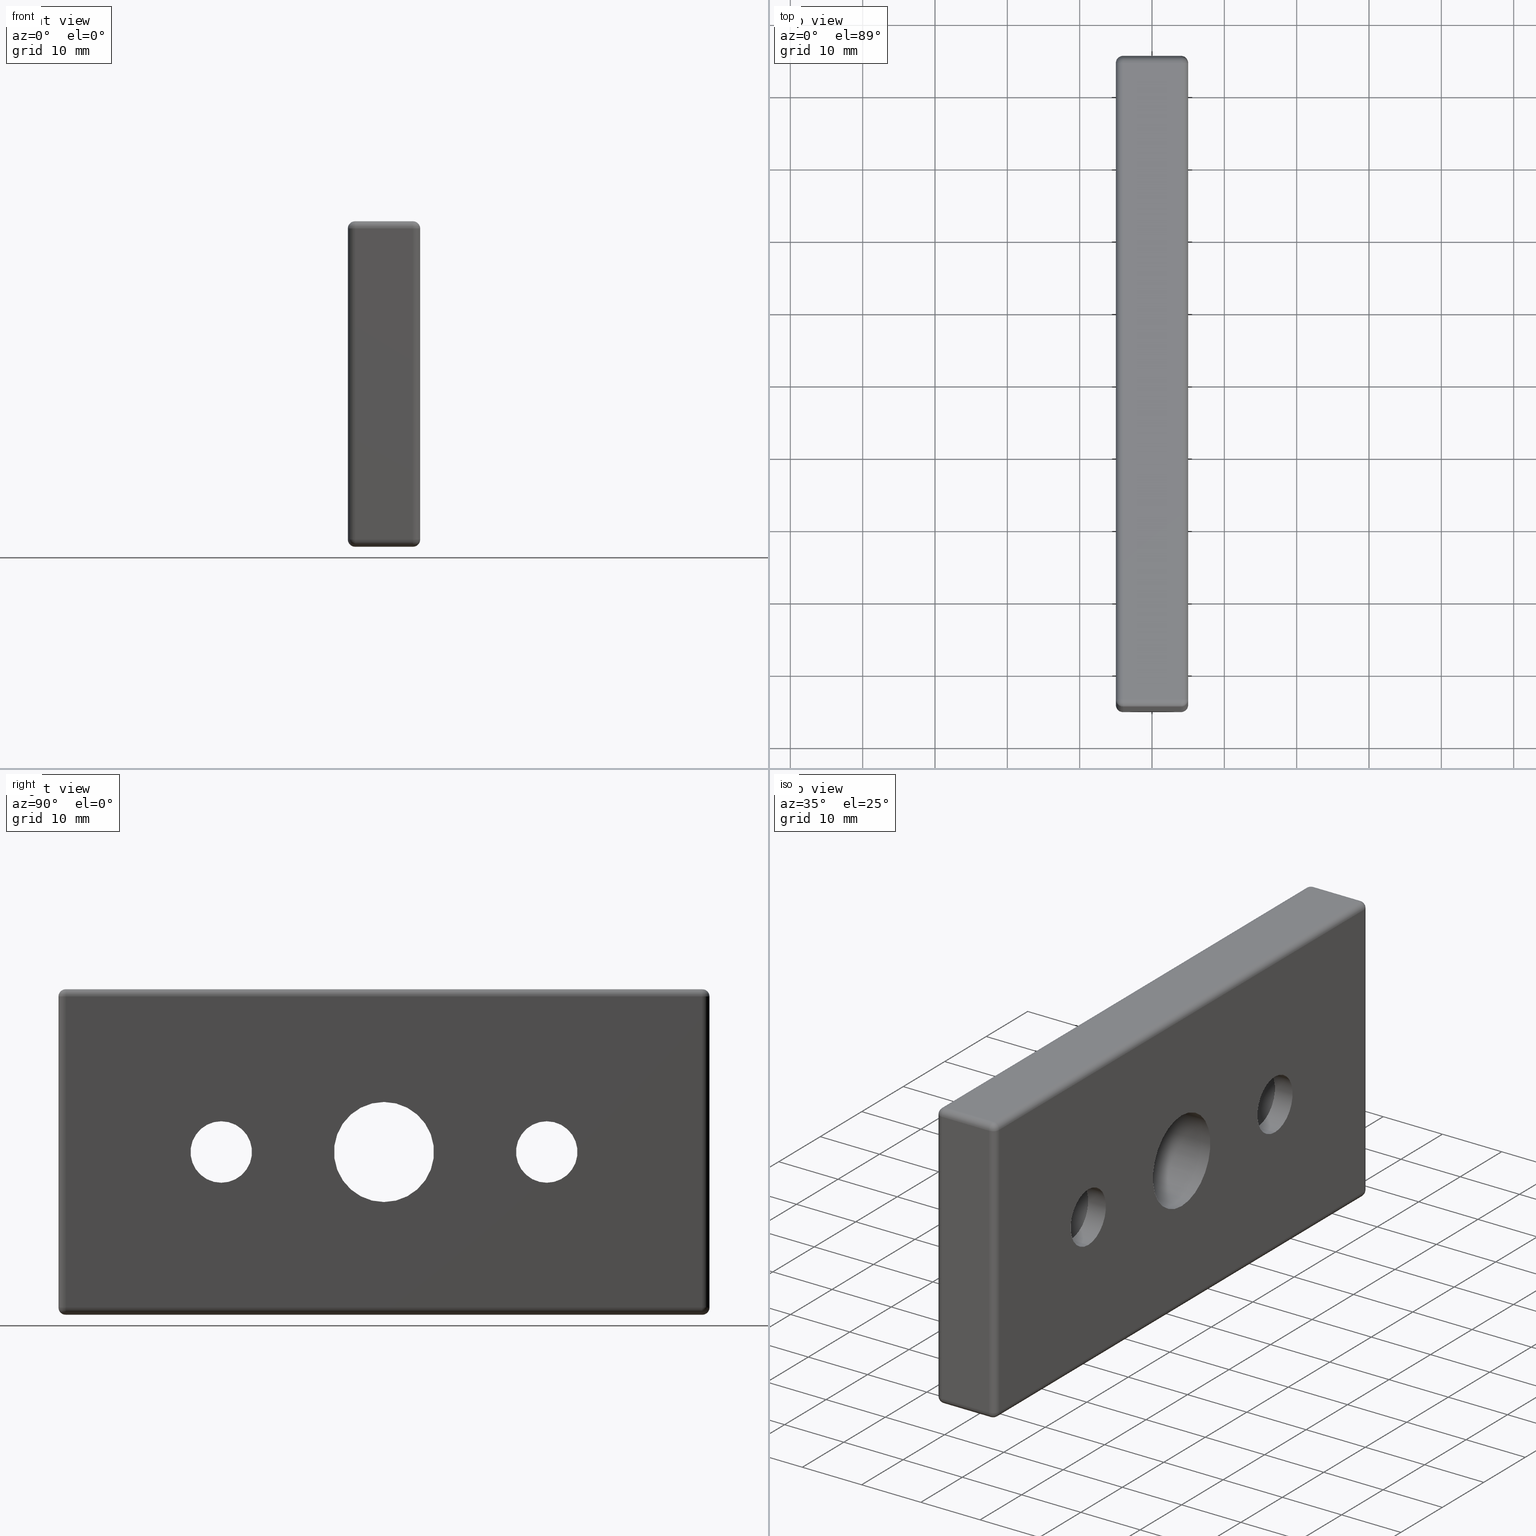
[diagram: canonical four-view strip — front | top / right | iso, engineering-drawing reading convention]
A machine part, canonical four-view strip (front | top / right | iso — engineering-drawing reading convention). The complete STEP part file that produces these views, byte-faithful:
ISO-10303-21;
HEADER;
/* Generated by software containing ST-Developer
 * from STEP Tools, Inc. (www.steptools.com) 
 */

FILE_DESCRIPTION(
/* description */ ('PIASTRA FISS. PIEDI M16 45X90'),
/* implementation_level */ '2;1');

FILE_NAME(
/* name */ 
'Q:\\Catalogo\\2_Accessori Dierre\\Per Download Web e catalogo cartace
o\\CATALOGO PIEDI E SOSTEGNI\\PAGINA 45\\DPSXX0001726.stp',
/* time_stamp */ '2018-11-09T11:31:42+01:00',
/* author */ ('fzagni'),
/* organization */ (''),
/* preprocessor_version */ 'ST-DEVELOPER v16.1',
/* originating_system */ 'Autodesk Inventor 2016',
/* authorisation */ '');

FILE_SCHEMA (('AUTOMOTIVE_DESIGN { 1 0 10303 214 3 1 1 }'));
ENDSEC;

DATA;
#10=MECHANICAL_DESIGN_GEOMETRIC_PRESENTATION_REPRESENTATION('',(#13),#821);
#11=SHAPE_REPRESENTATION_RELATIONSHIP('SRR','None',#830,#12);
#12=ADVANCED_BREP_SHAPE_REPRESENTATION('',(#14),#820);
#13=STYLED_ITEM('',(#839),#14);
#14=MANIFOLD_SOLID_BREP('Solido1',#463);
#15=FACE_BOUND('',#157,.T.);
#16=FACE_BOUND('',#158,.T.);
#17=FACE_BOUND('',#159,.T.);
#18=FACE_BOUND('',#163,.T.);
#19=FACE_BOUND('',#164,.T.);
#20=FACE_BOUND('',#165,.T.);
#21=FACE_BOUND('',#167,.T.);
#22=FACE_BOUND('',#169,.T.);
#23=FACE_BOUND('',#171,.T.);
#24=FACE_BOUND('',#173,.T.);
#25=FACE_BOUND('',#175,.T.);
#26=FACE_BOUND('',#177,.T.);
#27=FACE_BOUND('',#179,.T.);
#28=PLANE('',#509);
#29=PLANE('',#510);
#30=PLANE('',#511);
#31=PLANE('',#515);
#32=PLANE('',#516);
#33=PLANE('',#517);
#34=PLANE('',#521);
#35=PLANE('',#526);
#36=LINE('',#722,#60);
#37=LINE('',#723,#61);
#38=LINE('',#739,#62);
#39=LINE('',#740,#63);
#40=LINE('',#749,#64);
#41=LINE('',#750,#65);
#42=LINE('',#752,#66);
#43=LINE('',#753,#67);
#44=LINE('',#762,#68);
#45=LINE('',#763,#69);
#46=LINE('',#765,#70);
#47=LINE('',#766,#71);
#48=LINE('',#768,#72);
#49=LINE('',#769,#73);
#50=LINE('',#771,#74);
#51=LINE('',#772,#75);
#52=LINE('',#774,#76);
#53=LINE('',#775,#77);
#54=LINE('',#777,#78);
#55=LINE('',#778,#79);
#56=LINE('',#780,#80);
#57=LINE('',#781,#81);
#58=LINE('',#783,#82);
#59=LINE('',#784,#83);
#60=VECTOR('',#568,8.);
#61=VECTOR('',#569,8.);
#62=VECTOR('',#588,8.);
#63=VECTOR('',#589,8.);
#64=VECTOR('',#600,8.);
#65=VECTOR('',#601,8.);
#66=VECTOR('',#604,43.);
#67=VECTOR('',#605,43.);
#68=VECTOR('',#616,8.);
#69=VECTOR('',#617,8.);
#70=VECTOR('',#620,88.);
#71=VECTOR('',#621,88.);
#72=VECTOR('',#624,43.);
#73=VECTOR('',#625,43.);
#74=VECTOR('',#628,88.);
#75=VECTOR('',#629,88.);
#76=VECTOR('',#632,43.);
#77=VECTOR('',#633,43.);
#78=VECTOR('',#636,88.);
#79=VECTOR('',#637,88.);
#80=VECTOR('',#640,43.);
#81=VECTOR('',#641,43.);
#82=VECTOR('',#644,88.);
#83=VECTOR('',#645,88.);
#84=CYLINDRICAL_SURFACE('',#481,1.);
#85=CYLINDRICAL_SURFACE('',#490,1.);
#86=CYLINDRICAL_SURFACE('',#495,1.);
#87=CYLINDRICAL_SURFACE('',#496,1.);
#88=CYLINDRICAL_SURFACE('',#501,1.);
#89=CYLINDRICAL_SURFACE('',#502,1.);
#90=CYLINDRICAL_SURFACE('',#503,1.);
#91=CYLINDRICAL_SURFACE('',#504,1.);
#92=CYLINDRICAL_SURFACE('',#505,1.);
#93=CYLINDRICAL_SURFACE('',#506,1.);
#94=CYLINDRICAL_SURFACE('',#507,1.);
#95=CYLINDRICAL_SURFACE('',#508,1.);
#96=CYLINDRICAL_SURFACE('',#524,9.);
#97=CYLINDRICAL_SURFACE('',#525,4.25);
#98=CYLINDRICAL_SURFACE('',#529,9.);
#99=CYLINDRICAL_SURFACE('',#530,4.25);
#100=CYLINDRICAL_SURFACE('',#531,6.9175);
#101=FACE_OUTER_BOUND('',#134,.T.);
#102=FACE_OUTER_BOUND('',#135,.T.);
#103=FACE_OUTER_BOUND('',#136,.T.);
#104=FACE_OUTER_BOUND('',#137,.T.);
#105=FACE_OUTER_BOUND('',#138,.T.);
#106=FACE_OUTER_BOUND('',#139,.T.);
#107=FACE_OUTER_BOUND('',#140,.T.);
#108=FACE_OUTER_BOUND('',#141,.T.);
#109=FACE_OUTER_BOUND('',#142,.T.);
#110=FACE_OUTER_BOUND('',#143,.T.);
#111=FACE_OUTER_BOUND('',#144,.T.);
#112=FACE_OUTER_BOUND('',#145,.T.);
#113=FACE_OUTER_BOUND('',#146,.T.);
#114=FACE_OUTER_BOUND('',#147,.T.);
#115=FACE_OUTER_BOUND('',#148,.T.);
#116=FACE_OUTER_BOUND('',#149,.T.);
#117=FACE_OUTER_BOUND('',#150,.T.);
#118=FACE_OUTER_BOUND('',#151,.T.);
#119=FACE_OUTER_BOUND('',#152,.T.);
#120=FACE_OUTER_BOUND('',#153,.T.);
#121=FACE_OUTER_BOUND('',#154,.T.);
#122=FACE_OUTER_BOUND('',#155,.T.);
#123=FACE_OUTER_BOUND('',#156,.T.);
#124=FACE_OUTER_BOUND('',#160,.T.);
#125=FACE_OUTER_BOUND('',#161,.T.);
#126=FACE_OUTER_BOUND('',#162,.T.);
#127=FACE_OUTER_BOUND('',#166,.T.);
#128=FACE_OUTER_BOUND('',#168,.T.);
#129=FACE_OUTER_BOUND('',#170,.T.);
#130=FACE_OUTER_BOUND('',#172,.T.);
#131=FACE_OUTER_BOUND('',#174,.T.);
#132=FACE_OUTER_BOUND('',#176,.T.);
#133=FACE_OUTER_BOUND('',#178,.T.);
#134=EDGE_LOOP('',(#306,#307,#308));
#135=EDGE_LOOP('',(#309,#310,#311));
#136=EDGE_LOOP('',(#312,#313,#314));
#137=EDGE_LOOP('',(#315,#316,#317));
#138=EDGE_LOOP('',(#318,#319,#320,#321));
#139=EDGE_LOOP('',(#322,#323,#324));
#140=EDGE_LOOP('',(#325,#326,#327));
#141=EDGE_LOOP('',(#328,#329,#330,#331));
#142=EDGE_LOOP('',(#332,#333,#334));
#143=EDGE_LOOP('',(#335,#336,#337,#338));
#144=EDGE_LOOP('',(#339,#340,#341,#342));
#145=EDGE_LOOP('',(#343,#344,#345));
#146=EDGE_LOOP('',(#346,#347,#348,#349));
#147=EDGE_LOOP('',(#350,#351,#352,#353));
#148=EDGE_LOOP('',(#354,#355,#356,#357));
#149=EDGE_LOOP('',(#358,#359,#360,#361));
#150=EDGE_LOOP('',(#362,#363,#364,#365));
#151=EDGE_LOOP('',(#366,#367,#368,#369));
#152=EDGE_LOOP('',(#370,#371,#372,#373));
#153=EDGE_LOOP('',(#374,#375,#376,#377));
#154=EDGE_LOOP('',(#378,#379,#380,#381));
#155=EDGE_LOOP('',(#382,#383,#384,#385));
#156=EDGE_LOOP('',(#386,#387,#388,#389));
#157=EDGE_LOOP('',(#390));
#158=EDGE_LOOP('',(#391));
#159=EDGE_LOOP('',(#392));
#160=EDGE_LOOP('',(#393,#394,#395,#396));
#161=EDGE_LOOP('',(#397,#398,#399,#400));
#162=EDGE_LOOP('',(#401,#402,#403,#404));
#163=EDGE_LOOP('',(#405));
#164=EDGE_LOOP('',(#406));
#165=EDGE_LOOP('',(#407));
#166=EDGE_LOOP('',(#408));
#167=EDGE_LOOP('',(#409));
#168=EDGE_LOOP('',(#410));
#169=EDGE_LOOP('',(#411));
#170=EDGE_LOOP('',(#412));
#171=EDGE_LOOP('',(#413));
#172=EDGE_LOOP('',(#414));
#173=EDGE_LOOP('',(#415));
#174=EDGE_LOOP('',(#416));
#175=EDGE_LOOP('',(#417));
#176=EDGE_LOOP('',(#418));
#177=EDGE_LOOP('',(#419));
#178=EDGE_LOOP('',(#420));
#179=EDGE_LOOP('',(#421));
#180=CIRCLE('',#466,1.);
#181=CIRCLE('',#467,0.999999999999996);
#182=CIRCLE('',#468,1.);
#183=CIRCLE('',#470,0.999999999999996);
#184=CIRCLE('',#471,0.999999999999996);
#185=CIRCLE('',#472,1.);
#186=CIRCLE('',#474,0.999999999999996);
#187=CIRCLE('',#475,0.999999999999996);
#188=CIRCLE('',#476,1.);
#189=CIRCLE('',#478,0.999999999999996);
#190=CIRCLE('',#479,0.999999999999996);
#191=CIRCLE('',#480,1.);
#192=CIRCLE('',#483,1.);
#193=CIRCLE('',#484,0.999999999999996);
#194=CIRCLE('',#485,1.);
#195=CIRCLE('',#487,1.);
#196=CIRCLE('',#488,0.999999999999996);
#197=CIRCLE('',#489,1.);
#198=CIRCLE('',#492,1.);
#199=CIRCLE('',#493,0.999999999999996);
#200=CIRCLE('',#494,1.);
#201=CIRCLE('',#498,0.999999999999996);
#202=CIRCLE('',#499,0.999999999999996);
#203=CIRCLE('',#500,1.);
#204=CIRCLE('',#512,6.9175);
#205=CIRCLE('',#513,9.);
#206=CIRCLE('',#514,9.);
#207=CIRCLE('',#518,6.9175);
#208=CIRCLE('',#519,4.25);
#209=CIRCLE('',#520,4.25);
#210=CIRCLE('',#522,9.);
#211=CIRCLE('',#523,4.25);
#212=CIRCLE('',#527,9.);
#213=CIRCLE('',#528,4.25);
#214=VERTEX_POINT('',#694);
#215=VERTEX_POINT('',#695);
#216=VERTEX_POINT('',#697);
#217=VERTEX_POINT('',#701);
#218=VERTEX_POINT('',#702);
#219=VERTEX_POINT('',#704);
#220=VERTEX_POINT('',#708);
#221=VERTEX_POINT('',#709);
#222=VERTEX_POINT('',#711);
#223=VERTEX_POINT('',#715);
#224=VERTEX_POINT('',#716);
#225=VERTEX_POINT('',#718);
#226=VERTEX_POINT('',#725);
#227=VERTEX_POINT('',#726);
#228=VERTEX_POINT('',#728);
#229=VERTEX_POINT('',#732);
#230=VERTEX_POINT('',#733);
#231=VERTEX_POINT('',#735);
#232=VERTEX_POINT('',#742);
#233=VERTEX_POINT('',#743);
#234=VERTEX_POINT('',#745);
#235=VERTEX_POINT('',#755);
#236=VERTEX_POINT('',#756);
#237=VERTEX_POINT('',#758);
#238=VERTEX_POINT('',#788);
#239=VERTEX_POINT('',#790);
#240=VERTEX_POINT('',#792);
#241=VERTEX_POINT('',#797);
#242=VERTEX_POINT('',#799);
#243=VERTEX_POINT('',#801);
#244=VERTEX_POINT('',#804);
#245=VERTEX_POINT('',#806);
#246=VERTEX_POINT('',#811);
#247=VERTEX_POINT('',#813);
#248=EDGE_CURVE('',#214,#215,#180,.F.);
#249=EDGE_CURVE('',#216,#214,#181,.F.);
#250=EDGE_CURVE('',#215,#216,#182,.F.);
#251=EDGE_CURVE('',#217,#218,#183,.F.);
#252=EDGE_CURVE('',#219,#217,#184,.F.);
#253=EDGE_CURVE('',#218,#219,#185,.F.);
#254=EDGE_CURVE('',#220,#221,#186,.F.);
#255=EDGE_CURVE('',#222,#220,#187,.F.);
#256=EDGE_CURVE('',#221,#222,#188,.F.);
#257=EDGE_CURVE('',#223,#224,#189,.F.);
#258=EDGE_CURVE('',#225,#223,#190,.F.);
#259=EDGE_CURVE('',#224,#225,#191,.F.);
#260=EDGE_CURVE('',#214,#225,#36,.T.);
#261=EDGE_CURVE('',#223,#216,#37,.T.);
#262=EDGE_CURVE('',#226,#227,#192,.F.);
#263=EDGE_CURVE('',#228,#226,#193,.F.);
#264=EDGE_CURVE('',#227,#228,#194,.F.);
#265=EDGE_CURVE('',#229,#230,#195,.F.);
#266=EDGE_CURVE('',#231,#229,#196,.F.);
#267=EDGE_CURVE('',#230,#231,#197,.F.);
#268=EDGE_CURVE('',#229,#219,#38,.T.);
#269=EDGE_CURVE('',#217,#231,#39,.T.);
#270=EDGE_CURVE('',#232,#233,#198,.F.);
#271=EDGE_CURVE('',#234,#232,#199,.F.);
#272=EDGE_CURVE('',#233,#234,#200,.F.);
#273=EDGE_CURVE('',#220,#234,#40,.T.);
#274=EDGE_CURVE('',#232,#222,#41,.T.);
#275=EDGE_CURVE('',#224,#233,#42,.T.);
#276=EDGE_CURVE('',#234,#223,#43,.T.);
#277=EDGE_CURVE('',#235,#236,#201,.F.);
#278=EDGE_CURVE('',#237,#235,#202,.F.);
#279=EDGE_CURVE('',#236,#237,#203,.F.);
#280=EDGE_CURVE('',#226,#237,#44,.T.);
#281=EDGE_CURVE('',#235,#228,#45,.T.);
#282=EDGE_CURVE('',#233,#236,#46,.T.);
#283=EDGE_CURVE('',#237,#232,#47,.T.);
#284=EDGE_CURVE('',#236,#230,#48,.T.);
#285=EDGE_CURVE('',#231,#235,#49,.T.);
#286=EDGE_CURVE('',#230,#224,#50,.T.);
#287=EDGE_CURVE('',#225,#229,#51,.T.);
#288=EDGE_CURVE('',#218,#227,#52,.T.);
#289=EDGE_CURVE('',#228,#217,#53,.T.);
#290=EDGE_CURVE('',#227,#221,#54,.T.);
#291=EDGE_CURVE('',#222,#226,#55,.T.);
#292=EDGE_CURVE('',#221,#215,#56,.T.);
#293=EDGE_CURVE('',#216,#220,#57,.T.);
#294=EDGE_CURVE('',#215,#218,#58,.T.);
#295=EDGE_CURVE('',#219,#214,#59,.T.);
#296=EDGE_CURVE('',#238,#238,#204,.T.);
#297=EDGE_CURVE('',#239,#239,#205,.T.);
#298=EDGE_CURVE('',#240,#240,#206,.T.);
#299=EDGE_CURVE('',#241,#241,#207,.T.);
#300=EDGE_CURVE('',#242,#242,#208,.T.);
#301=EDGE_CURVE('',#243,#243,#209,.T.);
#302=EDGE_CURVE('',#244,#244,#210,.T.);
#303=EDGE_CURVE('',#245,#245,#211,.T.);
#304=EDGE_CURVE('',#246,#246,#212,.T.);
#305=EDGE_CURVE('',#247,#247,#213,.T.);
#306=ORIENTED_EDGE('',*,*,#248,.F.);
#307=ORIENTED_EDGE('',*,*,#249,.F.);
#308=ORIENTED_EDGE('',*,*,#250,.F.);
#309=ORIENTED_EDGE('',*,*,#251,.F.);
#310=ORIENTED_EDGE('',*,*,#252,.F.);
#311=ORIENTED_EDGE('',*,*,#253,.F.);
#312=ORIENTED_EDGE('',*,*,#254,.F.);
#313=ORIENTED_EDGE('',*,*,#255,.F.);
#314=ORIENTED_EDGE('',*,*,#256,.F.);
#315=ORIENTED_EDGE('',*,*,#257,.F.);
#316=ORIENTED_EDGE('',*,*,#258,.F.);
#317=ORIENTED_EDGE('',*,*,#259,.F.);
#318=ORIENTED_EDGE('',*,*,#249,.T.);
#319=ORIENTED_EDGE('',*,*,#260,.T.);
#320=ORIENTED_EDGE('',*,*,#258,.T.);
#321=ORIENTED_EDGE('',*,*,#261,.T.);
#322=ORIENTED_EDGE('',*,*,#262,.F.);
#323=ORIENTED_EDGE('',*,*,#263,.F.);
#324=ORIENTED_EDGE('',*,*,#264,.F.);
#325=ORIENTED_EDGE('',*,*,#265,.F.);
#326=ORIENTED_EDGE('',*,*,#266,.F.);
#327=ORIENTED_EDGE('',*,*,#267,.F.);
#328=ORIENTED_EDGE('',*,*,#266,.T.);
#329=ORIENTED_EDGE('',*,*,#268,.T.);
#330=ORIENTED_EDGE('',*,*,#252,.T.);
#331=ORIENTED_EDGE('',*,*,#269,.T.);
#332=ORIENTED_EDGE('',*,*,#270,.F.);
#333=ORIENTED_EDGE('',*,*,#271,.F.);
#334=ORIENTED_EDGE('',*,*,#272,.F.);
#335=ORIENTED_EDGE('',*,*,#255,.T.);
#336=ORIENTED_EDGE('',*,*,#273,.T.);
#337=ORIENTED_EDGE('',*,*,#271,.T.);
#338=ORIENTED_EDGE('',*,*,#274,.T.);
#339=ORIENTED_EDGE('',*,*,#257,.T.);
#340=ORIENTED_EDGE('',*,*,#275,.T.);
#341=ORIENTED_EDGE('',*,*,#272,.T.);
#342=ORIENTED_EDGE('',*,*,#276,.T.);
#343=ORIENTED_EDGE('',*,*,#277,.F.);
#344=ORIENTED_EDGE('',*,*,#278,.F.);
#345=ORIENTED_EDGE('',*,*,#279,.F.);
#346=ORIENTED_EDGE('',*,*,#263,.T.);
#347=ORIENTED_EDGE('',*,*,#280,.T.);
#348=ORIENTED_EDGE('',*,*,#278,.T.);
#349=ORIENTED_EDGE('',*,*,#281,.T.);
#350=ORIENTED_EDGE('',*,*,#270,.T.);
#351=ORIENTED_EDGE('',*,*,#282,.T.);
#352=ORIENTED_EDGE('',*,*,#279,.T.);
#353=ORIENTED_EDGE('',*,*,#283,.T.);
#354=ORIENTED_EDGE('',*,*,#277,.T.);
#355=ORIENTED_EDGE('',*,*,#284,.T.);
#356=ORIENTED_EDGE('',*,*,#267,.T.);
#357=ORIENTED_EDGE('',*,*,#285,.T.);
#358=ORIENTED_EDGE('',*,*,#265,.T.);
#359=ORIENTED_EDGE('',*,*,#286,.T.);
#360=ORIENTED_EDGE('',*,*,#259,.T.);
#361=ORIENTED_EDGE('',*,*,#287,.T.);
#362=ORIENTED_EDGE('',*,*,#251,.T.);
#363=ORIENTED_EDGE('',*,*,#288,.T.);
#364=ORIENTED_EDGE('',*,*,#264,.T.);
#365=ORIENTED_EDGE('',*,*,#289,.T.);
#366=ORIENTED_EDGE('',*,*,#262,.T.);
#367=ORIENTED_EDGE('',*,*,#290,.T.);
#368=ORIENTED_EDGE('',*,*,#256,.T.);
#369=ORIENTED_EDGE('',*,*,#291,.T.);
#370=ORIENTED_EDGE('',*,*,#254,.T.);
#371=ORIENTED_EDGE('',*,*,#292,.T.);
#372=ORIENTED_EDGE('',*,*,#250,.T.);
#373=ORIENTED_EDGE('',*,*,#293,.T.);
#374=ORIENTED_EDGE('',*,*,#248,.T.);
#375=ORIENTED_EDGE('',*,*,#294,.T.);
#376=ORIENTED_EDGE('',*,*,#253,.T.);
#377=ORIENTED_EDGE('',*,*,#295,.T.);
#378=ORIENTED_EDGE('',*,*,#268,.F.);
#379=ORIENTED_EDGE('',*,*,#287,.F.);
#380=ORIENTED_EDGE('',*,*,#260,.F.);
#381=ORIENTED_EDGE('',*,*,#295,.F.);
#382=ORIENTED_EDGE('',*,*,#273,.F.);
#383=ORIENTED_EDGE('',*,*,#293,.F.);
#384=ORIENTED_EDGE('',*,*,#261,.F.);
#385=ORIENTED_EDGE('',*,*,#276,.F.);
#386=ORIENTED_EDGE('',*,*,#275,.F.);
#387=ORIENTED_EDGE('',*,*,#286,.F.);
#388=ORIENTED_EDGE('',*,*,#284,.F.);
#389=ORIENTED_EDGE('',*,*,#282,.F.);
#390=ORIENTED_EDGE('',*,*,#296,.T.);
#391=ORIENTED_EDGE('',*,*,#297,.T.);
#392=ORIENTED_EDGE('',*,*,#298,.T.);
#393=ORIENTED_EDGE('',*,*,#281,.F.);
#394=ORIENTED_EDGE('',*,*,#285,.F.);
#395=ORIENTED_EDGE('',*,*,#269,.F.);
#396=ORIENTED_EDGE('',*,*,#289,.F.);
#397=ORIENTED_EDGE('',*,*,#280,.F.);
#398=ORIENTED_EDGE('',*,*,#291,.F.);
#399=ORIENTED_EDGE('',*,*,#274,.F.);
#400=ORIENTED_EDGE('',*,*,#283,.F.);
#401=ORIENTED_EDGE('',*,*,#288,.F.);
#402=ORIENTED_EDGE('',*,*,#294,.F.);
#403=ORIENTED_EDGE('',*,*,#292,.F.);
#404=ORIENTED_EDGE('',*,*,#290,.F.);
#405=ORIENTED_EDGE('',*,*,#299,.T.);
#406=ORIENTED_EDGE('',*,*,#300,.T.);
#407=ORIENTED_EDGE('',*,*,#301,.T.);
#408=ORIENTED_EDGE('',*,*,#302,.T.);
#409=ORIENTED_EDGE('',*,*,#303,.F.);
#410=ORIENTED_EDGE('',*,*,#298,.F.);
#411=ORIENTED_EDGE('',*,*,#302,.F.);
#412=ORIENTED_EDGE('',*,*,#301,.F.);
#413=ORIENTED_EDGE('',*,*,#303,.T.);
#414=ORIENTED_EDGE('',*,*,#304,.T.);
#415=ORIENTED_EDGE('',*,*,#305,.F.);
#416=ORIENTED_EDGE('',*,*,#297,.F.);
#417=ORIENTED_EDGE('',*,*,#304,.F.);
#418=ORIENTED_EDGE('',*,*,#300,.F.);
#419=ORIENTED_EDGE('',*,*,#305,.T.);
#420=ORIENTED_EDGE('',*,*,#299,.F.);
#421=ORIENTED_EDGE('',*,*,#296,.F.);
#422=SPHERICAL_SURFACE('',#465,0.999999999999996);
#423=SPHERICAL_SURFACE('',#469,0.999999999999996);
#424=SPHERICAL_SURFACE('',#473,0.999999999999996);
#425=SPHERICAL_SURFACE('',#477,0.999999999999996);
#426=SPHERICAL_SURFACE('',#482,0.999999999999996);
#427=SPHERICAL_SURFACE('',#486,0.999999999999996);
#428=SPHERICAL_SURFACE('',#491,0.999999999999996);
#429=SPHERICAL_SURFACE('',#497,0.999999999999996);
#430=ADVANCED_FACE('',(#101),#422,.T.);
#431=ADVANCED_FACE('',(#102),#423,.T.);
#432=ADVANCED_FACE('',(#103),#424,.T.);
#433=ADVANCED_FACE('',(#104),#425,.T.);
#434=ADVANCED_FACE('',(#105),#84,.T.);
#435=ADVANCED_FACE('',(#106),#426,.T.);
#436=ADVANCED_FACE('',(#107),#427,.T.);
#437=ADVANCED_FACE('',(#108),#85,.T.);
#438=ADVANCED_FACE('',(#109),#428,.T.);
#439=ADVANCED_FACE('',(#110),#86,.T.);
#440=ADVANCED_FACE('',(#111),#87,.T.);
#441=ADVANCED_FACE('',(#112),#429,.T.);
#442=ADVANCED_FACE('',(#113),#88,.T.);
#443=ADVANCED_FACE('',(#114),#89,.T.);
#444=ADVANCED_FACE('',(#115),#90,.T.);
#445=ADVANCED_FACE('',(#116),#91,.T.);
#446=ADVANCED_FACE('',(#117),#92,.T.);
#447=ADVANCED_FACE('',(#118),#93,.T.);
#448=ADVANCED_FACE('',(#119),#94,.T.);
#449=ADVANCED_FACE('',(#120),#95,.T.);
#450=ADVANCED_FACE('',(#121),#28,.T.);
#451=ADVANCED_FACE('',(#122),#29,.T.);
#452=ADVANCED_FACE('',(#123,#15,#16,#17),#30,.T.);
#453=ADVANCED_FACE('',(#124),#31,.T.);
#454=ADVANCED_FACE('',(#125),#32,.T.);
#455=ADVANCED_FACE('',(#126,#18,#19,#20),#33,.T.);
#456=ADVANCED_FACE('',(#127,#21),#34,.T.);
#457=ADVANCED_FACE('',(#128,#22),#96,.F.);
#458=ADVANCED_FACE('',(#129,#23),#97,.F.);
#459=ADVANCED_FACE('',(#130,#24),#35,.T.);
#460=ADVANCED_FACE('',(#131,#25),#98,.F.);
#461=ADVANCED_FACE('',(#132,#26),#99,.F.);
#462=ADVANCED_FACE('',(#133,#27),#100,.F.);
#463=CLOSED_SHELL('',(#430,#431,#432,#433,#434,#435,#436,#437,#438,#439,
#440,#441,#442,#443,#444,#445,#446,#447,#448,#449,#450,#451,#452,#453,#454,
#455,#456,#457,#458,#459,#460,#461,#462));
#464=AXIS2_PLACEMENT_3D('placement',#692,#532,#533);
#465=AXIS2_PLACEMENT_3D('',#693,#534,#535);
#466=AXIS2_PLACEMENT_3D('',#696,#536,#537);
#467=AXIS2_PLACEMENT_3D('',#698,#538,#539);
#468=AXIS2_PLACEMENT_3D('',#699,#540,#541);
#469=AXIS2_PLACEMENT_3D('',#700,#542,#543);
#470=AXIS2_PLACEMENT_3D('',#703,#544,#545);
#471=AXIS2_PLACEMENT_3D('',#705,#546,#547);
#472=AXIS2_PLACEMENT_3D('',#706,#548,#549);
#473=AXIS2_PLACEMENT_3D('',#707,#550,#551);
#474=AXIS2_PLACEMENT_3D('',#710,#552,#553);
#475=AXIS2_PLACEMENT_3D('',#712,#554,#555);
#476=AXIS2_PLACEMENT_3D('',#713,#556,#557);
#477=AXIS2_PLACEMENT_3D('',#714,#558,#559);
#478=AXIS2_PLACEMENT_3D('',#717,#560,#561);
#479=AXIS2_PLACEMENT_3D('',#719,#562,#563);
#480=AXIS2_PLACEMENT_3D('',#720,#564,#565);
#481=AXIS2_PLACEMENT_3D('',#721,#566,#567);
#482=AXIS2_PLACEMENT_3D('',#724,#570,#571);
#483=AXIS2_PLACEMENT_3D('',#727,#572,#573);
#484=AXIS2_PLACEMENT_3D('',#729,#574,#575);
#485=AXIS2_PLACEMENT_3D('',#730,#576,#577);
#486=AXIS2_PLACEMENT_3D('',#731,#578,#579);
#487=AXIS2_PLACEMENT_3D('',#734,#580,#581);
#488=AXIS2_PLACEMENT_3D('',#736,#582,#583);
#489=AXIS2_PLACEMENT_3D('',#737,#584,#585);
#490=AXIS2_PLACEMENT_3D('',#738,#586,#587);
#491=AXIS2_PLACEMENT_3D('',#741,#590,#591);
#492=AXIS2_PLACEMENT_3D('',#744,#592,#593);
#493=AXIS2_PLACEMENT_3D('',#746,#594,#595);
#494=AXIS2_PLACEMENT_3D('',#747,#596,#597);
#495=AXIS2_PLACEMENT_3D('',#748,#598,#599);
#496=AXIS2_PLACEMENT_3D('',#751,#602,#603);
#497=AXIS2_PLACEMENT_3D('',#754,#606,#607);
#498=AXIS2_PLACEMENT_3D('',#757,#608,#609);
#499=AXIS2_PLACEMENT_3D('',#759,#610,#611);
#500=AXIS2_PLACEMENT_3D('',#760,#612,#613);
#501=AXIS2_PLACEMENT_3D('',#761,#614,#615);
#502=AXIS2_PLACEMENT_3D('',#764,#618,#619);
#503=AXIS2_PLACEMENT_3D('',#767,#622,#623);
#504=AXIS2_PLACEMENT_3D('',#770,#626,#627);
#505=AXIS2_PLACEMENT_3D('',#773,#630,#631);
#506=AXIS2_PLACEMENT_3D('',#776,#634,#635);
#507=AXIS2_PLACEMENT_3D('',#779,#638,#639);
#508=AXIS2_PLACEMENT_3D('',#782,#642,#643);
#509=AXIS2_PLACEMENT_3D('',#785,#646,#647);
#510=AXIS2_PLACEMENT_3D('',#786,#648,#649);
#511=AXIS2_PLACEMENT_3D('',#787,#650,#651);
#512=AXIS2_PLACEMENT_3D('',#789,#652,#653);
#513=AXIS2_PLACEMENT_3D('',#791,#654,#655);
#514=AXIS2_PLACEMENT_3D('',#793,#656,#657);
#515=AXIS2_PLACEMENT_3D('',#794,#658,#659);
#516=AXIS2_PLACEMENT_3D('',#795,#660,#661);
#517=AXIS2_PLACEMENT_3D('',#796,#662,#663);
#518=AXIS2_PLACEMENT_3D('',#798,#664,#665);
#519=AXIS2_PLACEMENT_3D('',#800,#666,#667);
#520=AXIS2_PLACEMENT_3D('',#802,#668,#669);
#521=AXIS2_PLACEMENT_3D('',#803,#670,#671);
#522=AXIS2_PLACEMENT_3D('',#805,#672,#673);
#523=AXIS2_PLACEMENT_3D('',#807,#674,#675);
#524=AXIS2_PLACEMENT_3D('',#808,#676,#677);
#525=AXIS2_PLACEMENT_3D('',#809,#678,#679);
#526=AXIS2_PLACEMENT_3D('',#810,#680,#681);
#527=AXIS2_PLACEMENT_3D('',#812,#682,#683);
#528=AXIS2_PLACEMENT_3D('',#814,#684,#685);
#529=AXIS2_PLACEMENT_3D('',#815,#686,#687);
#530=AXIS2_PLACEMENT_3D('',#816,#688,#689);
#531=AXIS2_PLACEMENT_3D('',#817,#690,#691);
#532=DIRECTION('axis',(0.,0.,1.));
#533=DIRECTION('refdir',(1.,0.,0.));
#534=DIRECTION('center_axis',(-0.408248290463861,-0.408248290463861,-0.816496580927728));
#535=DIRECTION('ref_axis',(0.577350269189628,0.577350269189625,-0.577350269189625));
#536=DIRECTION('center_axis',(0.,1.,0.));
#537=DIRECTION('ref_axis',(0.,0.,-1.));
#538=DIRECTION('center_axis',(1.,0.,0.));
#539=DIRECTION('ref_axis',(0.,1.,0.));
#540=DIRECTION('center_axis',(0.,-4.44089209850064E-15,-1.));
#541=DIRECTION('ref_axis',(1.,0.,0.));
#542=DIRECTION('center_axis',(-0.408248290463861,0.408248290463861,-0.816496580927728));
#543=DIRECTION('ref_axis',(0.577350269189628,-0.577350269189625,-0.577350269189625));
#544=DIRECTION('center_axis',(4.44089209850063E-15,0.,-1.));
#545=DIRECTION('ref_axis',(0.,-1.,0.));
#546=DIRECTION('center_axis',(1.,0.,0.));
#547=DIRECTION('ref_axis',(0.,0.,-1.));
#548=DIRECTION('center_axis',(0.,-1.,0.));
#549=DIRECTION('ref_axis',(1.,0.,0.));
#550=DIRECTION('center_axis',(0.408248290463861,0.408248290463861,-0.816496580927728));
#551=DIRECTION('ref_axis',(0.577350269189628,0.577350269189625,0.577350269189625));
#552=DIRECTION('center_axis',(4.44089209850063E-15,0.,1.));
#553=DIRECTION('ref_axis',(0.,1.,0.));
#554=DIRECTION('center_axis',(1.,0.,0.));
#555=DIRECTION('ref_axis',(0.,0.,1.));
#556=DIRECTION('center_axis',(0.,1.,0.));
#557=DIRECTION('ref_axis',(1.,0.,0.));
#558=DIRECTION('center_axis',(0.408248290463861,-0.408248290463861,-0.816496580927728));
#559=DIRECTION('ref_axis',(-0.577350269189628,0.577350269189625,-0.577350269189625));
#560=DIRECTION('center_axis',(-4.44089209850063E-15,0.,-1.));
#561=DIRECTION('ref_axis',(0.,1.,0.));
#562=DIRECTION('center_axis',(-1.,0.,0.));
#563=DIRECTION('ref_axis',(0.,0.,-1.));
#564=DIRECTION('center_axis',(0.,1.,0.));
#565=DIRECTION('ref_axis',(-1.,0.,0.));
#566=DIRECTION('center_axis',(1.,0.,0.));
#567=DIRECTION('ref_axis',(0.,0.707106781186548,-0.707106781186548));
#568=DIRECTION('',(-1.,0.,0.));
#569=DIRECTION('',(1.,0.,0.));
#570=DIRECTION('center_axis',(0.408248290463861,-0.408248290463861,-0.816496580927728));
#571=DIRECTION('ref_axis',(0.577350269189628,-0.577350269189625,0.577350269189625));
#572=DIRECTION('center_axis',(0.,-1.,0.));
#573=DIRECTION('ref_axis',(0.,0.,1.));
#574=DIRECTION('center_axis',(1.,0.,0.));
#575=DIRECTION('ref_axis',(0.,-1.,0.));
#576=DIRECTION('center_axis',(0.,4.44089209850064E-15,1.));
#577=DIRECTION('ref_axis',(1.,0.,0.));
#578=DIRECTION('center_axis',(0.408248290463861,0.408248290463861,-0.816496580927728));
#579=DIRECTION('ref_axis',(-0.577350269189628,-0.577350269189625,-0.577350269189625));
#580=DIRECTION('center_axis',(0.,-1.,0.));
#581=DIRECTION('ref_axis',(0.,0.,-1.));
#582=DIRECTION('center_axis',(-1.,0.,0.));
#583=DIRECTION('ref_axis',(0.,-1.,0.));
#584=DIRECTION('center_axis',(0.,4.44089209850064E-15,-1.));
#585=DIRECTION('ref_axis',(-1.,0.,0.));
#586=DIRECTION('center_axis',(-1.,0.,0.));
#587=DIRECTION('ref_axis',(0.,-0.707106781186548,-0.707106781186548));
#588=DIRECTION('',(1.,0.,0.));
#589=DIRECTION('',(-1.,0.,0.));
#590=DIRECTION('center_axis',(-0.408248290463861,0.408248290463861,-0.816496580927728));
#591=DIRECTION('ref_axis',(-0.577350269189628,0.577350269189625,0.577350269189625));
#592=DIRECTION('center_axis',(0.,1.,0.));
#593=DIRECTION('ref_axis',(0.,0.,1.));
#594=DIRECTION('center_axis',(-1.,0.,0.));
#595=DIRECTION('ref_axis',(0.,1.,0.));
#596=DIRECTION('center_axis',(0.,-4.44089209850064E-15,1.));
#597=DIRECTION('ref_axis',(-1.,0.,0.));
#598=DIRECTION('center_axis',(1.,0.,0.));
#599=DIRECTION('ref_axis',(0.,0.707106781186548,0.707106781186548));
#600=DIRECTION('',(-1.,0.,0.));
#601=DIRECTION('',(1.,0.,0.));
#602=DIRECTION('center_axis',(0.,0.,-1.));
#603=DIRECTION('ref_axis',(-0.707106781186549,0.707106781186546,0.));
#604=DIRECTION('',(0.,0.,1.));
#605=DIRECTION('',(0.,0.,-1.));
#606=DIRECTION('center_axis',(-0.408248290463861,-0.408248290463861,-0.816496580927728));
#607=DIRECTION('ref_axis',(-0.577350269189628,-0.577350269189625,0.577350269189625));
#608=DIRECTION('center_axis',(-4.44089209850063E-15,0.,1.));
#609=DIRECTION('ref_axis',(0.,-1.,0.));
#610=DIRECTION('center_axis',(-1.,0.,0.));
#611=DIRECTION('ref_axis',(0.,0.,1.));
#612=DIRECTION('center_axis',(0.,-1.,0.));
#613=DIRECTION('ref_axis',(-1.,0.,0.));
#614=DIRECTION('center_axis',(1.,0.,0.));
#615=DIRECTION('ref_axis',(0.,-0.707106781186548,0.707106781186548));
#616=DIRECTION('',(-1.,0.,0.));
#617=DIRECTION('',(1.,0.,0.));
#618=DIRECTION('center_axis',(0.,1.,0.));
#619=DIRECTION('ref_axis',(-0.707106781186546,0.,0.707106781186549));
#620=DIRECTION('',(0.,-1.,0.));
#621=DIRECTION('',(0.,1.,0.));
#622=DIRECTION('center_axis',(0.,0.,1.));
#623=DIRECTION('ref_axis',(-0.707106781186549,-0.707106781186546,0.));
#624=DIRECTION('',(0.,0.,-1.));
#625=DIRECTION('',(0.,0.,1.));
#626=DIRECTION('center_axis',(0.,-1.,0.));
#627=DIRECTION('ref_axis',(-0.707106781186546,0.,-0.707106781186549));
#628=DIRECTION('',(0.,1.,0.));
#629=DIRECTION('',(0.,-1.,0.));
#630=DIRECTION('center_axis',(0.,0.,-1.));
#631=DIRECTION('ref_axis',(0.707106781186549,-0.707106781186546,0.));
#632=DIRECTION('',(0.,0.,1.));
#633=DIRECTION('',(0.,0.,-1.));
#634=DIRECTION('center_axis',(0.,-1.,0.));
#635=DIRECTION('ref_axis',(0.707106781186546,0.,0.707106781186549));
#636=DIRECTION('',(0.,1.,0.));
#637=DIRECTION('',(0.,-1.,0.));
#638=DIRECTION('center_axis',(0.,0.,1.));
#639=DIRECTION('ref_axis',(0.707106781186549,0.707106781186546,0.));
#640=DIRECTION('',(0.,0.,-1.));
#641=DIRECTION('',(0.,0.,1.));
#642=DIRECTION('center_axis',(0.,1.,0.));
#643=DIRECTION('ref_axis',(0.707106781186546,0.,-0.707106781186549));
#644=DIRECTION('',(0.,-1.,0.));
#645=DIRECTION('',(0.,1.,0.));
#646=DIRECTION('center_axis',(0.,0.,-1.));
#647=DIRECTION('ref_axis',(0.,1.,0.));
#648=DIRECTION('center_axis',(0.,1.,0.));
#649=DIRECTION('ref_axis',(0.,0.,1.));
#650=DIRECTION('center_axis',(-1.,0.,0.));
#651=DIRECTION('ref_axis',(0.,0.,1.));
#652=DIRECTION('center_axis',(1.,0.,0.));
#653=DIRECTION('ref_axis',(0.,0.,1.));
#654=DIRECTION('center_axis',(1.,0.,0.));
#655=DIRECTION('ref_axis',(0.,0.,1.));
#656=DIRECTION('center_axis',(1.,0.,0.));
#657=DIRECTION('ref_axis',(0.,0.,1.));
#658=DIRECTION('center_axis',(0.,-1.,0.));
#659=DIRECTION('ref_axis',(0.,0.,-1.));
#660=DIRECTION('center_axis',(0.,0.,1.));
#661=DIRECTION('ref_axis',(0.,-1.,0.));
#662=DIRECTION('center_axis',(1.,0.,0.));
#663=DIRECTION('ref_axis',(0.,0.,-1.));
#664=DIRECTION('center_axis',(-1.,0.,0.));
#665=DIRECTION('ref_axis',(0.,0.,1.));
#666=DIRECTION('center_axis',(-1.,0.,0.));
#667=DIRECTION('ref_axis',(0.,0.,1.));
#668=DIRECTION('center_axis',(-1.,0.,0.));
#669=DIRECTION('ref_axis',(0.,0.,1.));
#670=DIRECTION('center_axis',(-1.,0.,0.));
#671=DIRECTION('ref_axis',(0.,0.,1.));
#672=DIRECTION('center_axis',(-1.,0.,0.));
#673=DIRECTION('ref_axis',(0.,0.,1.));
#674=DIRECTION('center_axis',(-1.,0.,0.));
#675=DIRECTION('ref_axis',(0.,0.,1.));
#676=DIRECTION('center_axis',(-1.,0.,0.));
#677=DIRECTION('ref_axis',(0.,0.,1.));
#678=DIRECTION('center_axis',(-1.,0.,0.));
#679=DIRECTION('ref_axis',(0.,0.,1.));
#680=DIRECTION('center_axis',(-1.,0.,0.));
#681=DIRECTION('ref_axis',(0.,0.,1.));
#682=DIRECTION('center_axis',(-1.,0.,0.));
#683=DIRECTION('ref_axis',(0.,0.,1.));
#684=DIRECTION('center_axis',(-1.,0.,0.));
#685=DIRECTION('ref_axis',(0.,0.,1.));
#686=DIRECTION('center_axis',(-1.,0.,0.));
#687=DIRECTION('ref_axis',(0.,0.,1.));
#688=DIRECTION('center_axis',(-1.,0.,0.));
#689=DIRECTION('ref_axis',(0.,0.,1.));
#690=DIRECTION('center_axis',(-1.,0.,0.));
#691=DIRECTION('ref_axis',(0.,0.,1.));
#692=CARTESIAN_POINT('',(0.,0.,0.));
#693=CARTESIAN_POINT('Origin',(4.,44.,-21.5));
#694=CARTESIAN_POINT('',(4.,44.,-22.5));
#695=CARTESIAN_POINT('',(5.,44.,-21.5));
#696=CARTESIAN_POINT('Origin',(4.,44.,-21.5));
#697=CARTESIAN_POINT('',(4.,45.,-21.5));
#698=CARTESIAN_POINT('Origin',(4.,44.,-21.5));
#699=CARTESIAN_POINT('Origin',(4.,44.,-21.5));
#700=CARTESIAN_POINT('Origin',(4.,-44.,-21.5));
#701=CARTESIAN_POINT('',(4.,-45.,-21.5));
#702=CARTESIAN_POINT('',(5.,-44.,-21.5));
#703=CARTESIAN_POINT('Origin',(4.,-44.,-21.5));
#704=CARTESIAN_POINT('',(4.,-44.,-22.5));
#705=CARTESIAN_POINT('Origin',(4.,-44.,-21.5));
#706=CARTESIAN_POINT('Origin',(4.,-44.,-21.5));
#707=CARTESIAN_POINT('Origin',(4.,44.,21.5));
#708=CARTESIAN_POINT('',(4.,45.,21.5));
#709=CARTESIAN_POINT('',(5.,44.,21.5));
#710=CARTESIAN_POINT('Origin',(4.,44.,21.5));
#711=CARTESIAN_POINT('',(4.,44.,22.5));
#712=CARTESIAN_POINT('Origin',(4.,44.,21.5));
#713=CARTESIAN_POINT('Origin',(4.,44.,21.5));
#714=CARTESIAN_POINT('Origin',(-4.,44.,-21.5));
#715=CARTESIAN_POINT('',(-4.,45.,-21.5));
#716=CARTESIAN_POINT('',(-5.,44.,-21.5));
#717=CARTESIAN_POINT('Origin',(-4.,44.,-21.5));
#718=CARTESIAN_POINT('',(-4.,44.,-22.5));
#719=CARTESIAN_POINT('Origin',(-4.,44.,-21.5));
#720=CARTESIAN_POINT('Origin',(-4.,44.,-21.5));
#721=CARTESIAN_POINT('Origin',(0.,44.,-21.5));
#722=CARTESIAN_POINT('',(0.,44.,-22.5));
#723=CARTESIAN_POINT('',(0.,45.,-21.5));
#724=CARTESIAN_POINT('Origin',(4.,-44.,21.5));
#725=CARTESIAN_POINT('',(4.,-44.,22.5));
#726=CARTESIAN_POINT('',(5.,-44.,21.5));
#727=CARTESIAN_POINT('Origin',(4.,-44.,21.5));
#728=CARTESIAN_POINT('',(4.,-45.,21.5));
#729=CARTESIAN_POINT('Origin',(4.,-44.,21.5));
#730=CARTESIAN_POINT('Origin',(4.,-44.,21.5));
#731=CARTESIAN_POINT('Origin',(-4.,-44.,-21.5));
#732=CARTESIAN_POINT('',(-4.,-44.,-22.5));
#733=CARTESIAN_POINT('',(-5.,-44.,-21.5));
#734=CARTESIAN_POINT('Origin',(-4.,-44.,-21.5));
#735=CARTESIAN_POINT('',(-4.,-45.,-21.5));
#736=CARTESIAN_POINT('Origin',(-4.,-44.,-21.5));
#737=CARTESIAN_POINT('Origin',(-4.,-44.,-21.5));
#738=CARTESIAN_POINT('Origin',(0.,-44.,-21.5));
#739=CARTESIAN_POINT('',(0.,-44.,-22.5));
#740=CARTESIAN_POINT('',(0.,-45.,-21.5));
#741=CARTESIAN_POINT('Origin',(-4.,44.,21.5));
#742=CARTESIAN_POINT('',(-4.,44.,22.5));
#743=CARTESIAN_POINT('',(-5.,44.,21.5));
#744=CARTESIAN_POINT('Origin',(-4.,44.,21.5));
#745=CARTESIAN_POINT('',(-4.,45.,21.5));
#746=CARTESIAN_POINT('Origin',(-4.,44.,21.5));
#747=CARTESIAN_POINT('Origin',(-4.,44.,21.5));
#748=CARTESIAN_POINT('Origin',(0.,44.,21.5));
#749=CARTESIAN_POINT('',(0.,45.,21.5));
#750=CARTESIAN_POINT('',(0.,44.,22.5));
#751=CARTESIAN_POINT('Origin',(-4.,44.,-11.25));
#752=CARTESIAN_POINT('',(-5.,44.,-11.25));
#753=CARTESIAN_POINT('',(-4.,45.,-11.25));
#754=CARTESIAN_POINT('Origin',(-4.,-44.,21.5));
#755=CARTESIAN_POINT('',(-4.,-45.,21.5));
#756=CARTESIAN_POINT('',(-5.,-44.,21.5));
#757=CARTESIAN_POINT('Origin',(-4.,-44.,21.5));
#758=CARTESIAN_POINT('',(-4.,-44.,22.5));
#759=CARTESIAN_POINT('Origin',(-4.,-44.,21.5));
#760=CARTESIAN_POINT('Origin',(-4.,-44.,21.5));
#761=CARTESIAN_POINT('Origin',(0.,-44.,21.5));
#762=CARTESIAN_POINT('',(0.,-44.,22.5));
#763=CARTESIAN_POINT('',(0.,-45.,21.5));
#764=CARTESIAN_POINT('Origin',(-4.,22.5,21.5));
#765=CARTESIAN_POINT('',(-5.,22.5,21.5));
#766=CARTESIAN_POINT('',(-4.,22.5,22.5));
#767=CARTESIAN_POINT('Origin',(-4.,-44.,11.25));
#768=CARTESIAN_POINT('',(-5.,-44.,11.25));
#769=CARTESIAN_POINT('',(-4.,-45.,11.25));
#770=CARTESIAN_POINT('Origin',(-4.,-22.5,-21.5));
#771=CARTESIAN_POINT('',(-5.,-22.5,-21.5));
#772=CARTESIAN_POINT('',(-4.,-22.5,-22.5));
#773=CARTESIAN_POINT('Origin',(4.,-44.,11.25));
#774=CARTESIAN_POINT('',(5.,-44.,11.25));
#775=CARTESIAN_POINT('',(4.,-45.,11.25));
#776=CARTESIAN_POINT('Origin',(4.,22.5,21.5));
#777=CARTESIAN_POINT('',(5.,22.5,21.5));
#778=CARTESIAN_POINT('',(4.,22.5,22.5));
#779=CARTESIAN_POINT('Origin',(4.,44.,-11.25));
#780=CARTESIAN_POINT('',(5.,44.,-11.25));
#781=CARTESIAN_POINT('',(4.,45.,-11.25));
#782=CARTESIAN_POINT('Origin',(4.,-22.5,-21.5));
#783=CARTESIAN_POINT('',(5.,-22.5,-21.5));
#784=CARTESIAN_POINT('',(4.,-22.5,-22.5));
#785=CARTESIAN_POINT('Origin',(0.,-45.,-22.5));
#786=CARTESIAN_POINT('Origin',(0.,45.,-22.5));
#787=CARTESIAN_POINT('Origin',(-5.,0.,0.));
#788=CARTESIAN_POINT('',(-5.,0.,6.9175));
#789=CARTESIAN_POINT('Origin',(-5.,0.,0.));
#790=CARTESIAN_POINT('',(-5.,-22.5,9.));
#791=CARTESIAN_POINT('Origin',(-5.,-22.5,0.));
#792=CARTESIAN_POINT('',(-5.,22.5,9.));
#793=CARTESIAN_POINT('Origin',(-5.,22.5,0.));
#794=CARTESIAN_POINT('Origin',(0.,-45.,22.5));
#795=CARTESIAN_POINT('Origin',(0.,45.,22.5));
#796=CARTESIAN_POINT('Origin',(5.,0.,0.));
#797=CARTESIAN_POINT('',(5.,-8.47149423310182E-16,-6.9175));
#798=CARTESIAN_POINT('Origin',(5.,0.,0.));
#799=CARTESIAN_POINT('',(5.,-22.5,-4.25));
#800=CARTESIAN_POINT('Origin',(5.,-22.5,0.));
#801=CARTESIAN_POINT('',(5.,22.5,-4.25));
#802=CARTESIAN_POINT('Origin',(5.,22.5,0.));
#803=CARTESIAN_POINT('Origin',(2.,22.5,0.));
#804=CARTESIAN_POINT('',(2.,22.5,9.));
#805=CARTESIAN_POINT('Origin',(2.,22.5,0.));
#806=CARTESIAN_POINT('',(1.99999999999999,22.5,-4.25));
#807=CARTESIAN_POINT('Origin',(1.99999999999999,22.5,0.));
#808=CARTESIAN_POINT('Origin',(-1.5,22.5,0.));
#809=CARTESIAN_POINT('Origin',(96.1187420807834,22.5,0.));
#810=CARTESIAN_POINT('Origin',(2.,-22.5,0.));
#811=CARTESIAN_POINT('',(2.,-22.5,9.));
#812=CARTESIAN_POINT('Origin',(2.,-22.5,0.));
#813=CARTESIAN_POINT('',(1.99999999999999,-22.5,-4.25));
#814=CARTESIAN_POINT('Origin',(1.99999999999999,-22.5,0.));
#815=CARTESIAN_POINT('Origin',(-1.5,-22.5,0.));
#816=CARTESIAN_POINT('Origin',(96.1187420807834,-22.5,0.));
#817=CARTESIAN_POINT('Origin',(96.1187420807834,0.,0.));
#818=UNCERTAINTY_MEASURE_WITH_UNIT(LENGTH_MEASURE(0.01),#822,
'DISTANCE_ACCURACY_VALUE',
'Maximum model space distance between geometric entities at asserted c
onnectivities');
#819=UNCERTAINTY_MEASURE_WITH_UNIT(LENGTH_MEASURE(1.E-6),#822,
'DISTANCE_ACCURACY_VALUE',
'Maximum model space distance between geometric entities at asserted c
onnectivities');
#820=(
GEOMETRIC_REPRESENTATION_CONTEXT(3)
GLOBAL_UNCERTAINTY_ASSIGNED_CONTEXT((#818))
GLOBAL_UNIT_ASSIGNED_CONTEXT((#822,#825,#823))
REPRESENTATION_CONTEXT('','3D')
);
#821=(
GEOMETRIC_REPRESENTATION_CONTEXT(3)
GLOBAL_UNCERTAINTY_ASSIGNED_CONTEXT((#819))
GLOBAL_UNIT_ASSIGNED_CONTEXT((#822,#825,#823))
REPRESENTATION_CONTEXT('','3D')
);
#822=(
LENGTH_UNIT()
NAMED_UNIT(*)
SI_UNIT(.MILLI.,.METRE.)
);
#823=(
NAMED_UNIT(*)
SI_UNIT($,.STERADIAN.)
SOLID_ANGLE_UNIT()
);
#824=DIMENSIONAL_EXPONENTS(0.,0.,0.,0.,0.,0.,0.);
#825=(
CONVERSION_BASED_UNIT('degree',#827)
NAMED_UNIT(#824)
PLANE_ANGLE_UNIT()
);
#826=(
NAMED_UNIT(*)
PLANE_ANGLE_UNIT()
SI_UNIT($,.RADIAN.)
);
#827=PLANE_ANGLE_MEASURE_WITH_UNIT(PLANE_ANGLE_MEASURE(0.01745329252),#826);
#828=SHAPE_DEFINITION_REPRESENTATION(#829,#830);
#829=PRODUCT_DEFINITION_SHAPE('',$,#832);
#830=SHAPE_REPRESENTATION('',(#464),#820);
#831=PRODUCT_DEFINITION_CONTEXT('part definition',#836,'design');
#832=PRODUCT_DEFINITION('DPSXX0001726','DPSXX0001726',#833,#831);
#833=PRODUCT_DEFINITION_FORMATION('','A',#838);
#834=PRODUCT_RELATED_PRODUCT_CATEGORY('DPSXX0001726','DPSXX0001726',(#838));
#835=APPLICATION_PROTOCOL_DEFINITION('international standard',
'automotive_design',2009,#836);
#836=APPLICATION_CONTEXT(
'Core Data for Automotive Mechanical Design Process');
#837=PRODUCT_CONTEXT('part definition',#836,'mechanical');
#838=PRODUCT('DPSXX0001726','DPSXX0001726',$,(#837));
#839=PRESENTATION_STYLE_ASSIGNMENT((#840));
#840=SURFACE_STYLE_USAGE(.BOTH.,#841);
#841=SURFACE_SIDE_STYLE('',(#842));
#842=SURFACE_STYLE_FILL_AREA(#843);
#843=FILL_AREA_STYLE('',(#844));
#844=FILL_AREA_STYLE_COLOUR('',#845);
#845=COLOUR_RGB('',0.956862745098039,0.956862745098039,0.956862745098039);
ENDSEC;
END-ISO-10303-21;
